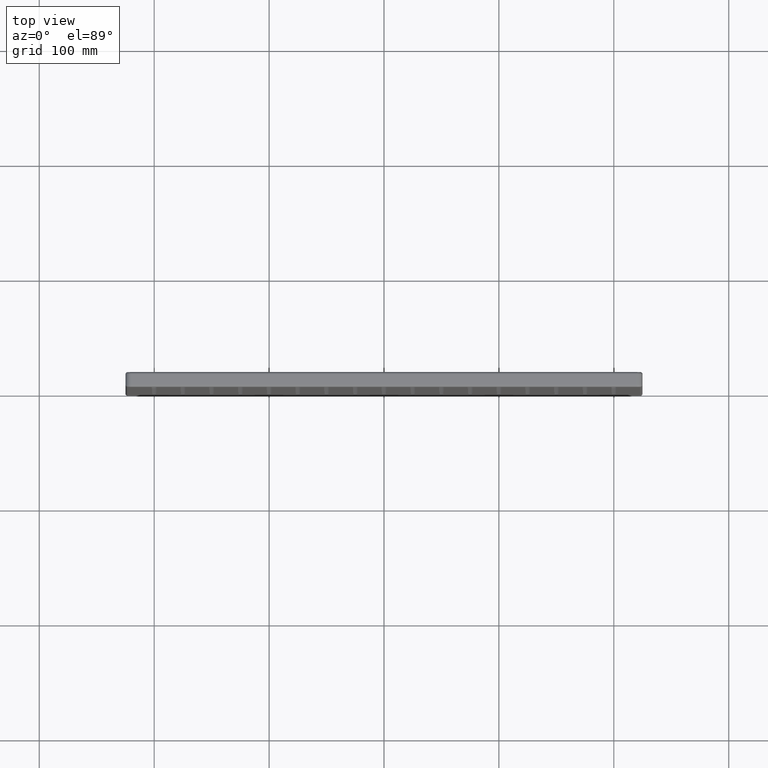
[diagram: clean part render]
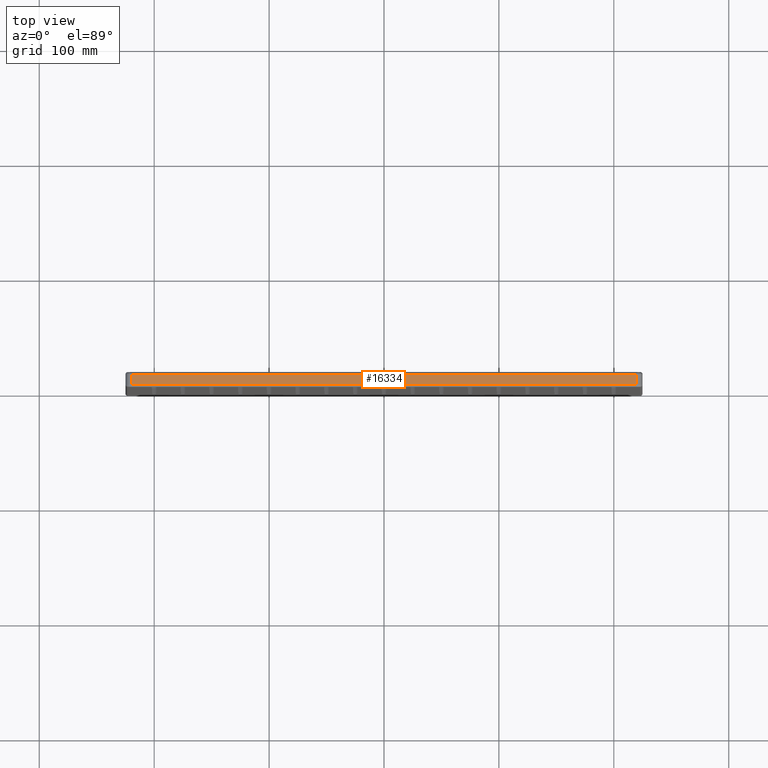
[diagram: same view with one face highlighted and labeled with its STEP entity id]
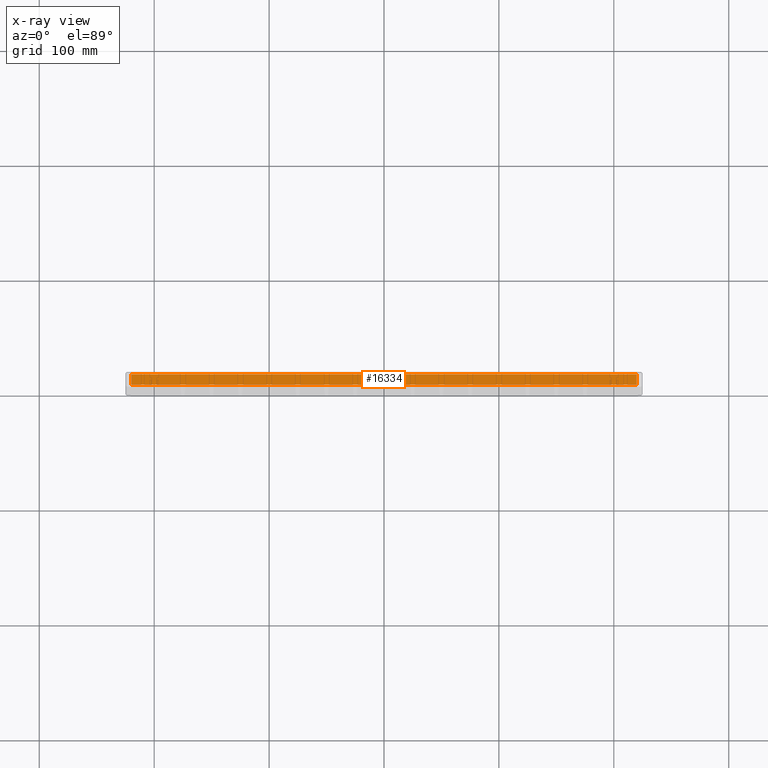
[diagram: x-ray of the same camera — body ghosted, the highlighted face saturated]
A machine part, top view. The second image highlights one B-rep face of the part: STEP entity #16334.
The next image is the same camera in x-ray: the body ghosted, the highlighted face saturated — about 0% of this face is hidden behind the body in this view.
In plain terms, the highlighted planar face has unit normal (0, 0, -1).
Its self-contained STEP definition (entity closure, byte-faithful):
#404 = CARTESIAN_POINT ( 'NONE',  ( -220.0000000000000300, 13.00000000000000000, 224.9999999999999700 ) ) ;
#601 = EDGE_CURVE ( 'NONE', #6968, #8339, #21188, .T. ) ;
#1168 = VERTEX_POINT ( 'NONE', #12759 ) ;
#2216 = DIRECTION ( 'NONE',  ( -0.0000000000000000000, -1.000000000000000000, -0.0000000000000000000 ) ) ;
#2446 = CARTESIAN_POINT ( 'NONE',  ( -220.0000000000000300, 11.00000000000000000, 224.9999999999999700 ) ) ;
#3316 = CARTESIAN_POINT ( 'NONE',  ( 220.0000000000000300, 13.00000000000000000, 224.9999999999999100 ) ) ;
#3470 = DIRECTION ( 'NONE',  ( -0.0000000000000000000, -1.000000000000000000, -0.0000000000000000000 ) ) ;
#3596 = ORIENTED_EDGE ( 'NONE', *, *, #601, .T. ) ;
#5595 = VECTOR ( 'NONE', #3470, 1000.000000000000000 ) ;
#6294 = ORIENTED_EDGE ( 'NONE', *, *, #12581, .T. ) ;
#6441 = LINE ( 'NONE', #2446, #13972 ) ;
#6952 = VECTOR ( 'NONE', #2216, 1000.000000000000000 ) ;
#6968 = VERTEX_POINT ( 'NONE', #9709 ) ;
#7877 = DIRECTION ( 'NONE',  ( -1.000000000000000000, -0.0000000000000000000, -0.0000000000000000000 ) ) ;
#8339 = VERTEX_POINT ( 'NONE', #18327 ) ;
#8555 = AXIS2_PLACEMENT_3D ( 'NONE', #15874, #20968, #17338 ) ;
#8633 = VERTEX_POINT ( 'NONE', #22291 ) ;
#8654 = LINE ( 'NONE', #3316, #5595 ) ;
#8963 = VECTOR ( 'NONE', #10410, 1000.000000000000000 ) ;
#9709 = CARTESIAN_POINT ( 'NONE',  ( -220.0000000000000300, 2.000000000000003600, 224.9999999999999700 ) ) ;
#10410 = DIRECTION ( 'NONE',  ( 1.000000000000000000, -0.0000000000000000000, 0.0000000000000000000 ) ) ;
#12067 = EDGE_CURVE ( 'NONE', #8633, #8339, #8654, .T. ) ;
#12581 = EDGE_CURVE ( 'NONE', #1168, #6968, #20857, .T. ) ;
#12759 = CARTESIAN_POINT ( 'NONE',  ( -220.0000000000000300, 11.00000000000000000, 224.9999999999999700 ) ) ;
#13321 = ORIENTED_EDGE ( 'NONE', *, *, #12067, .F. ) ;
#13626 = EDGE_LOOP ( 'NONE', ( #6294, #3596, #13321, #14476 ) ) ;
#13972 = VECTOR ( 'NONE', #7877, 1000.000000000000000 ) ;
#14476 = ORIENTED_EDGE ( 'NONE', *, *, #15310, .T. ) ;
#15310 = EDGE_CURVE ( 'NONE', #8633, #1168, #6441, .T. ) ;
#15727 = PLANE ( 'NONE',  #8555 ) ;
#15874 = CARTESIAN_POINT ( 'NONE',  ( -220.0000000000000300, 13.00000000000000000, 224.9999999999999700 ) ) ;
#16334 = ADVANCED_FACE ( 'NONE', ( #18602 ), #15727, .F. ) ;
#17338 = DIRECTION ( 'NONE',  ( -1.000000000000000000, 0.0000000000000000000, -0.0000000000000000000 ) ) ;
#18327 = CARTESIAN_POINT ( 'NONE',  ( 220.0000000000000300, 2.000000000000003600, 224.9999999999999100 ) ) ;
#18602 = FACE_OUTER_BOUND ( 'NONE', #13626, .T. ) ;
#20857 = LINE ( 'NONE', #404, #6952 ) ;
#20968 = DIRECTION ( 'NONE',  ( 0.0000000000000000000, 0.0000000000000000000, -1.000000000000000000 ) ) ;
#21188 = LINE ( 'NONE', #22691, #8963 ) ;
#22291 = CARTESIAN_POINT ( 'NONE',  ( 220.0000000000000300, 11.00000000000000000, 224.9999999999999100 ) ) ;
#22691 = CARTESIAN_POINT ( 'NONE',  ( -220.0000000000000300, 2.000000000000000000, 224.9999999999999700 ) ) ;